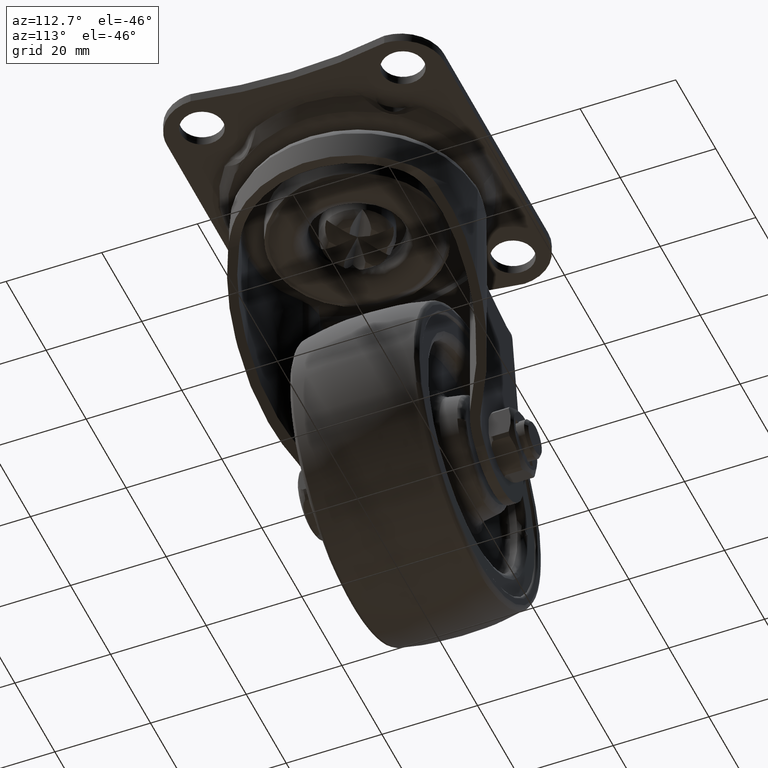
[diagram: clean part render]
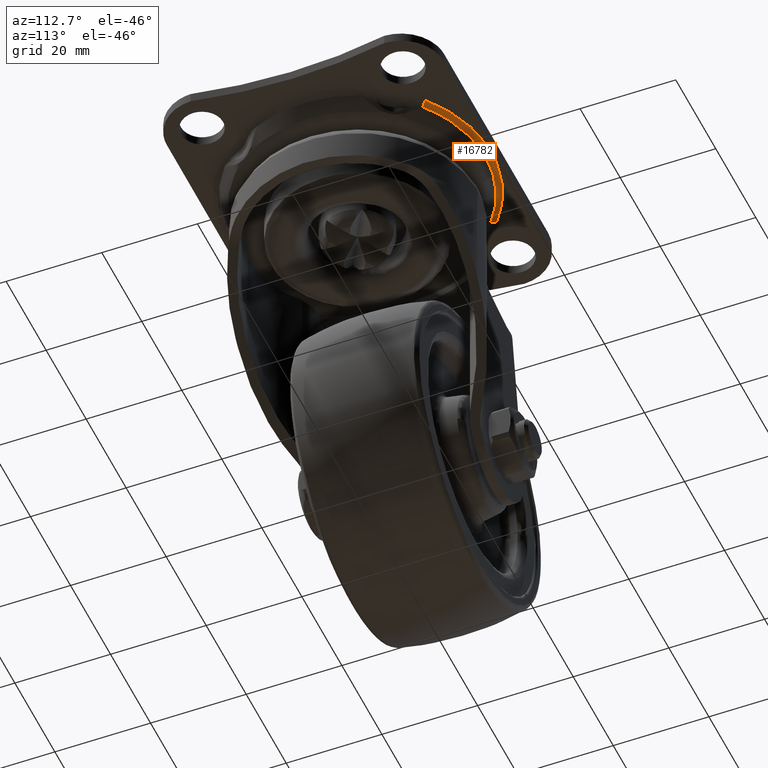
[diagram: same view with one face highlighted and labeled with its STEP entity id]
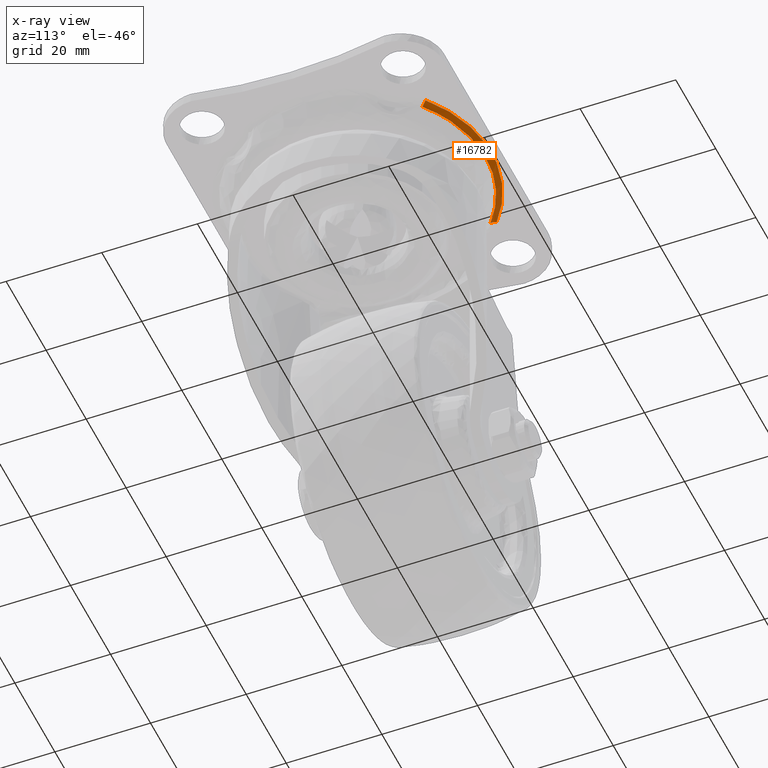
[diagram: x-ray of the same camera — body ghosted, the highlighted face saturated]
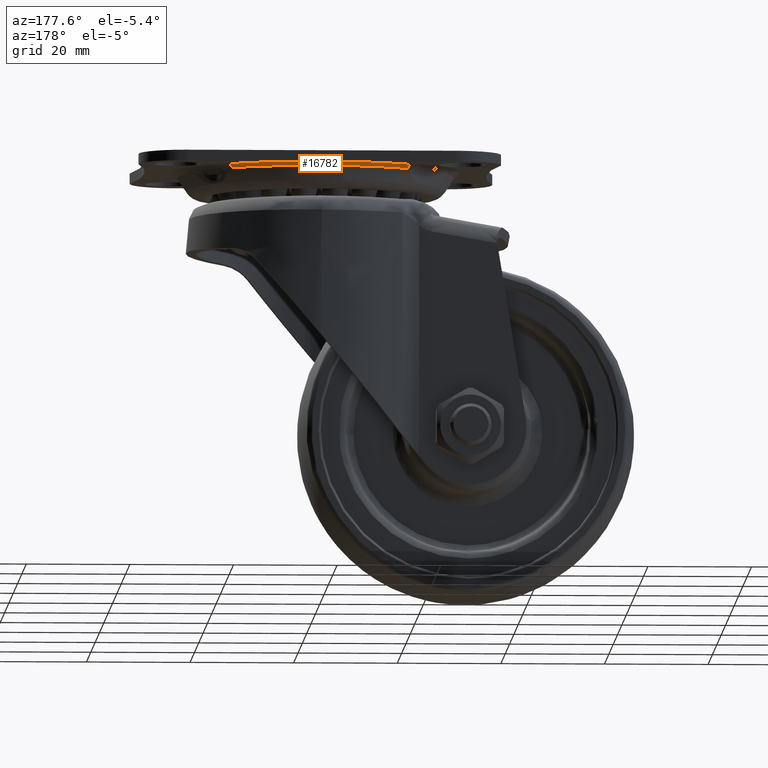
[diagram: same view with one face highlighted and labeled with its STEP entity id]
A machine part, auxiliary view. The second image highlights one B-rep face of the part: STEP entity #16782.
The next image is the same camera in x-ray: the body ghosted, the highlighted face saturated — about 0% of this face is hidden behind the body in this view.
A second angle (auxiliary view) of the same face is appended — the face is thin or edge-on in the first view.
In plain terms, the highlighted face is a freeform B-spline surface patch.
Its self-contained STEP definition (entity closure, byte-faithful):
#13388=CARTESIAN_POINT('',(-16.923341668391899,20.707304675418051,-2.681558287574845));
#13389=VERTEX_POINT('',#13388);
#13421=CARTESIAN_POINT('',(-4.548424869818695,26.353371995033928,-2.681539995435029));
#13422=VERTEX_POINT('',#13421);
#13423=CARTESIAN_POINT('',(-16.923341668391899,20.707304675418051,-2.681558287574845));
#13424=CARTESIAN_POINT('',(-11.478226705081806,25.157369825553115,-2.681549401504553));
#13425=CARTESIAN_POINT('',(-4.548424869818695,26.353371995033921,-2.681539995435028));
#13433=(BOUNDED_CURVE()B_SPLINE_CURVE(2,(#13423,#13424,#13425),.UNSPECIFIED.,.F.,.U.)B_SPLINE_CURVE_WITH_KNOTS((3,3),(0.0,0.379905799358590),.UNSPECIFIED.)CURVE()GEOMETRIC_REPRESENTATION_ITEM()RATIONAL_B_SPLINE_CURVE((1.0,0.914256602603896,0.893662033062768))REPRESENTATION_ITEM(''));
#13434=EDGE_CURVE('',#13389,#13422,#13433,.T.);
#13859=CARTESIAN_POINT('',(16.923396694074398,20.707128679232550,-2.681546433358110));
#13860=VERTEX_POINT('',#13859);
#13861=CARTESIAN_POINT('',(-4.548424869818695,26.353371995033921,-2.681539995435028));
#13862=CARTESIAN_POINT('',(7.475557706392994,28.428599505866089,-2.681542763273861));
#13863=CARTESIAN_POINT('',(16.923396694074398,20.707128679232550,-2.681546433358110));
#13871=(BOUNDED_CURVE()B_SPLINE_CURVE(2,(#13861,#13862,#13863),.UNSPECIFIED.,.F.,.U.)B_SPLINE_CURVE_WITH_KNOTS((3,3),(0.379905799358590,1.0),.UNSPECIFIED.)CURVE()GEOMETRIC_REPRESENTATION_ITEM()RATIONAL_B_SPLINE_CURVE((0.893662033062768,0.860046928584972,1.0))REPRESENTATION_ITEM(''));
#13872=EDGE_CURVE('',#13422,#13860,#13871,.T.);
#16561=CARTESIAN_POINT('',(-17.718784154439899,21.680661965806500,-2.0));
#16562=VERTEX_POINT('',#16561);
#16563=CARTESIAN_POINT('',(-17.718784154439899,21.680661965806500,-2.0));
#16564=CARTESIAN_POINT('',(-17.404399048955710,21.295961639756840,-1.999979088502528));
#16565=CARTESIAN_POINT('',(-17.094879027647529,20.917215401312809,-2.265183421400006));
#16566=CARTESIAN_POINT('',(-16.923341668391899,20.707304675418051,-2.681558287574845));
#16567=QUASI_UNIFORM_CURVE('',3,(#16563,#16564,#16565,#16566),.UNSPECIFIED.,.F.,.U.);
#16568=EDGE_CURVE('',#16562,#13389,#16567,.T.);
#16705=CARTESIAN_POINT('',(-18.157745203906799,19.582124408798361,-2.740432774011633));
#16706=CARTESIAN_POINT('',(-14.591407006946511,22.889500595423943,-2.741596709150637));
#16707=CARTESIAN_POINT('',(-5.237754560285154,26.705424768913925,-2.741256304465923));
#16708=CARTESIAN_POINT('',(5.237956788610146,26.705400693555067,-2.741304431198047));
#16709=CARTESIAN_POINT('',(12.380676038128190,23.791275364148810,-2.741167871869301));
#16710=CARTESIAN_POINT('',(16.436239764480778,21.178719385470600,-2.741750912585280));
#16711=CARTESIAN_POINT('',(18.157805553672869,19.581966350886958,-2.740279930955724));
#16712=CARTESIAN_POINT('',(-18.227661566125366,19.657629022430921,-2.568700839946631));
#16713=CARTESIAN_POINT('',(-14.647720205075558,22.977626488523782,-2.569889945967493));
#16714=CARTESIAN_POINT('',(-5.258495485170724,26.807981881830049,-2.569274004164722));
#16715=CARTESIAN_POINT('',(5.258653306912073,26.807945092492179,-2.569426273794623));
#16716=CARTESIAN_POINT('',(12.428459514690781,23.882693146407370,-2.569398729554752));
#16717=CARTESIAN_POINT('',(16.499711636977349,21.260449250961859,-2.569542126536341));
#16718=CARTESIAN_POINT('',(18.227679470194804,19.657417455285284,-2.568534332283834));
#16719=CARTESIAN_POINT('',(-18.427974467818412,19.873750628746716,-2.283762822569611));
#16720=CARTESIAN_POINT('',(-14.808833621473278,23.230161222928015,-2.284810673671761));
#16721=CARTESIAN_POINT('',(-5.316840479436265,27.102378468965551,-2.283949450404599));
#16722=CARTESIAN_POINT('',(5.316963015738275,27.102338936833409,-2.284238981369953));
#16723=CARTESIAN_POINT('',(12.565143967515715,24.144982668871066,-2.284135202698924));
#16724=CARTESIAN_POINT('',(16.681372988315562,21.494464532525090,-2.284876266938921));
#16725=CARTESIAN_POINT('',(18.427920517168502,19.873447457324612,-2.283526539143318));
#16726=CARTESIAN_POINT('',(-18.678069109403289,20.143455848338512,-2.084426657537615));
#16727=CARTESIAN_POINT('',(-15.009858438449214,23.545498298085452,-2.085283038724572));
#16728=CARTESIAN_POINT('',(-5.388988119822677,27.470302553252509,-2.084494199126058));
#16729=CARTESIAN_POINT('',(5.389109971263650,27.470238279545786,-2.084773269165029));
#16730=CARTESIAN_POINT('',(12.735775372148781,24.472831218236632,-2.084590060168738));
#16731=CARTESIAN_POINT('',(16.907429854897323,21.785772340981609,-2.085816780309122));
#16732=CARTESIAN_POINT('',(18.677974705469747,20.143098911144605,-2.084125764877416));
#16733=CARTESIAN_POINT('',(-18.949882354452935,20.436486991743255,-1.993043839810705));
#16734=CARTESIAN_POINT('',(-15.228204506263042,23.888210090681245,-1.993740074825073));
#16735=CARTESIAN_POINT('',(-5.466854372310106,27.870392601175684,-1.993322471742405));
#16736=CARTESIAN_POINT('',(5.467028816207243,27.870351486314533,-1.993424956510691));
#16737=CARTESIAN_POINT('',(12.921030457293412,24.829215646977648,-1.993385809726758));
#16738=CARTESIAN_POINT('',(17.153391153786117,22.102752917420773,-1.993692703860996));
#16739=CARTESIAN_POINT('',(18.949798723970144,20.436138789317411,-1.992726377901181));
#16740=CARTESIAN_POINT('',(-19.085993294426512,20.583174588220569,-2.000520632973340));
#16741=CARTESIAN_POINT('',(-15.337446089489385,24.059793861916109,-2.001141665174730));
#16742=CARTESIAN_POINT('',(-5.505571646037594,28.070805589551409,-2.001019979514878));
#16743=CARTESIAN_POINT('',(5.505785979793335,28.070827911470673,-2.001052631555807));
#16744=CARTESIAN_POINT('',(13.013649362441523,25.007647738406735,-2.000961309435780));
#16745=CARTESIAN_POINT('',(17.276854932459472,22.261867101707242,-2.001330478174103));
#16746=CARTESIAN_POINT('',(19.085947588152894,20.582870708548185,-2.000233052824515));
#16754=(BOUNDED_SURFACE()B_SPLINE_SURFACE(2,2,((#16705,#16712,#16719,#16726,#16733,#16740),(#16706,#16713,#16720,#16727,#16734,#16741),(#16707,#16714,#16721,#16728,#16735,#16742),(#16708,#16715,#16722,#16729,#16736,#16743),(#16709,#16716,#16723,#16730,#16737,#16744),(#16710,#16717,#16724,#16731,#16738,#16745),(#16711,#16718,#16725,#16732,#16739,#16746)),.UNSPECIFIED.,.F.,.F.,.U.)B_SPLINE_SURFACE_WITH_KNOTS((3,1,1,1,1,3),(3,1,1,1,3),(0.0,11.011862545204970,22.023725090409950,33.035587635614917,38.541518908217412,44.047450180819887),(0.0,0.418518587120968,0.837037174241936,1.255555761362904,1.674074348483871),.UNSPECIFIED.)GEOMETRIC_REPRESENTATION_ITEM()RATIONAL_B_SPLINE_SURFACE(((0.856077154800685,0.825140930117800,0.794180161610501,0.794131073961672,0.824993667171313,0.855880804205368),(0.798992238310251,0.770118902226424,0.741222658948899,0.741176844561502,0.769981459064235,0.798808980760665),(0.741907559220779,0.715097103157005,0.688265376523442,0.688222835383866,0.714969479738275,0.741737394662473),(0.741908034022700,0.715097560800917,0.688265816995734,0.688223275828932,0.714969937300512,0.741737869355493),(0.784722255542685,0.756364596568851,0.727984439523264,0.727939443379759,0.756229608138337,0.784542270968667),(0.827536358362191,0.797631517925806,0.767702951932721,0.767655500819320,0.797489164585603,0.827346553908587),(0.856079054008368,0.825142760693450,0.794181923499668,0.794132835741937,0.824995497420260,0.855882702977448)))REPRESENTATION_ITEM('')SURFACE());
#16755=CARTESIAN_POINT('',(17.718868508836700,21.680452033092902,-2.0));
#16756=VERTEX_POINT('',#16755);
#16757=CARTESIAN_POINT('',(17.718868508836700,21.680452033092902,-2.0));
#16758=CARTESIAN_POINT('',(17.404455053391871,21.295743351758819,-2.000068252727350));
#16759=CARTESIAN_POINT('',(17.094938977931591,20.917025691308819,-2.265256249815587));
#16760=CARTESIAN_POINT('',(16.923396694074398,20.707128679232550,-2.681546433358110));
#16761=QUASI_UNIFORM_CURVE('',3,(#16757,#16758,#16759,#16760),.UNSPECIFIED.,.F.,.U.);
#16762=EDGE_CURVE('',#16756,#13860,#16761,.T.);
#16763=ORIENTED_EDGE('',*,*,#16762,.T.);
#16764=ORIENTED_EDGE('',*,*,#13872,.F.);
#16765=ORIENTED_EDGE('',*,*,#13434,.F.);
#16766=ORIENTED_EDGE('',*,*,#16568,.F.);
#16767=CARTESIAN_POINT('',(17.718868508836700,21.680452033092902,-2.0));
#16768=CARTESIAN_POINT('',(0.000093420255074,36.161559241844962,-2.000000000000000));
#16769=CARTESIAN_POINT('',(-17.718784154439899,21.680661965806500,-2.0));
#16777=(BOUNDED_CURVE()B_SPLINE_CURVE(2,(#16767,#16768,#16769),.UNSPECIFIED.,.F.,.U.)CURVE()GEOMETRIC_REPRESENTATION_ITEM()QUASI_UNIFORM_CURVE()RATIONAL_B_SPLINE_CURVE((1.0,0.774303948699259,1.0))REPRESENTATION_ITEM(''));
#16778=EDGE_CURVE('',#16756,#16562,#16777,.T.);
#16779=ORIENTED_EDGE('',*,*,#16778,.F.);
#16780=EDGE_LOOP('',(#16763,#16764,#16765,#16766,#16779));
#16781=FACE_OUTER_BOUND('',#16780,.T.);
#16782=ADVANCED_FACE('',(#16781),#16754,.F.);